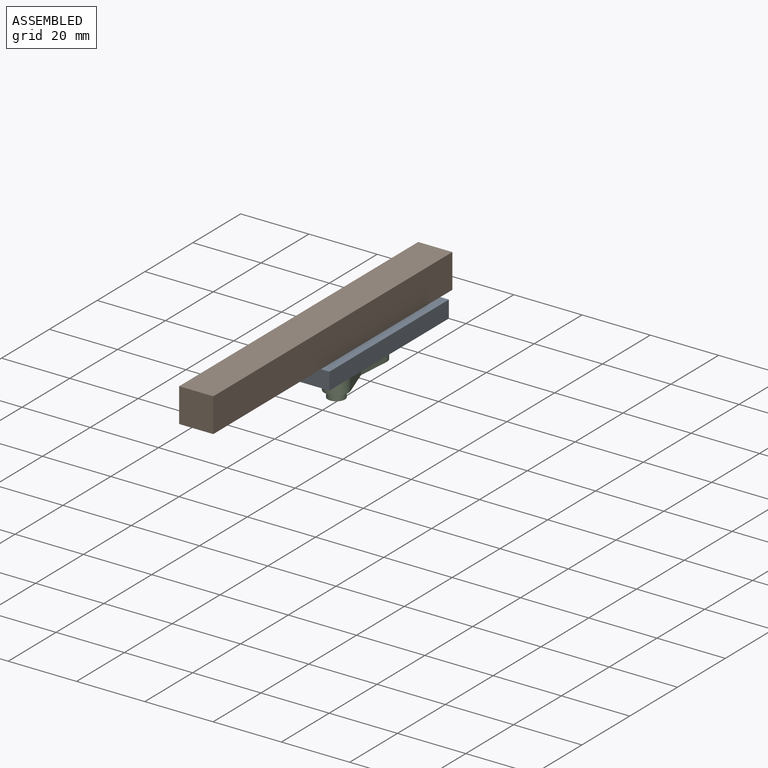
[diagram: assembled view]
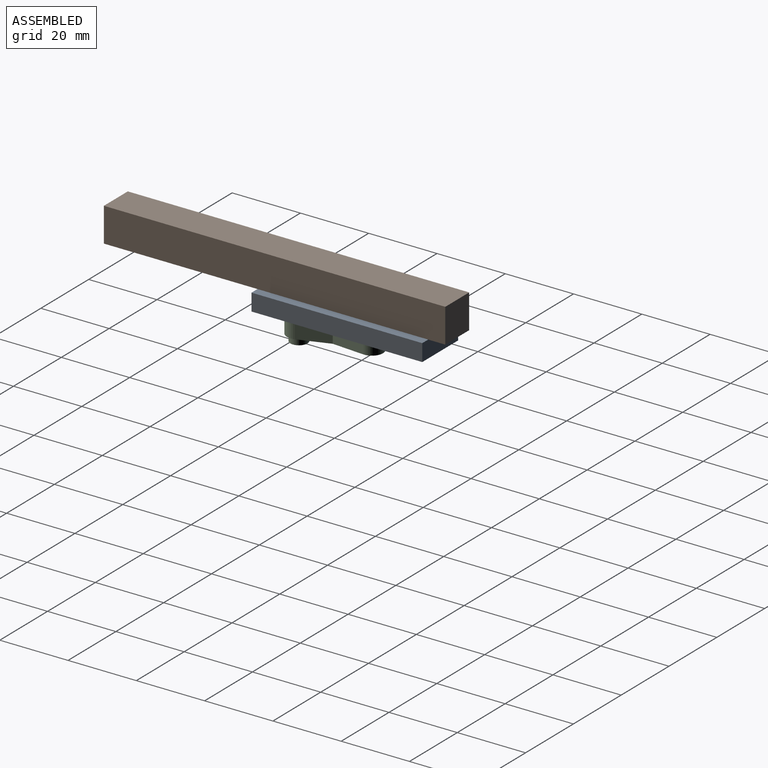
[diagram: assembled view, second angle]
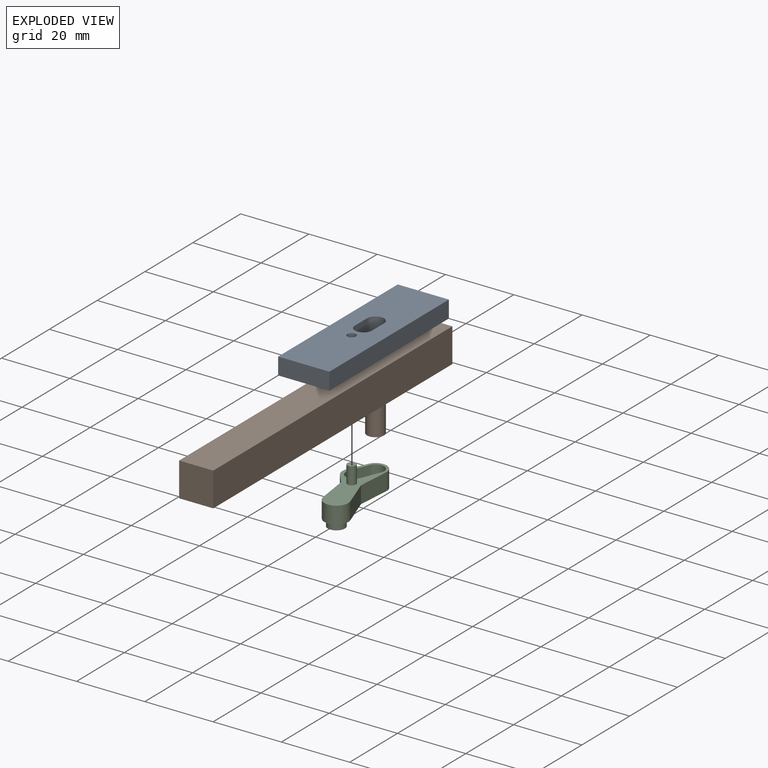
[diagram: exploded view]
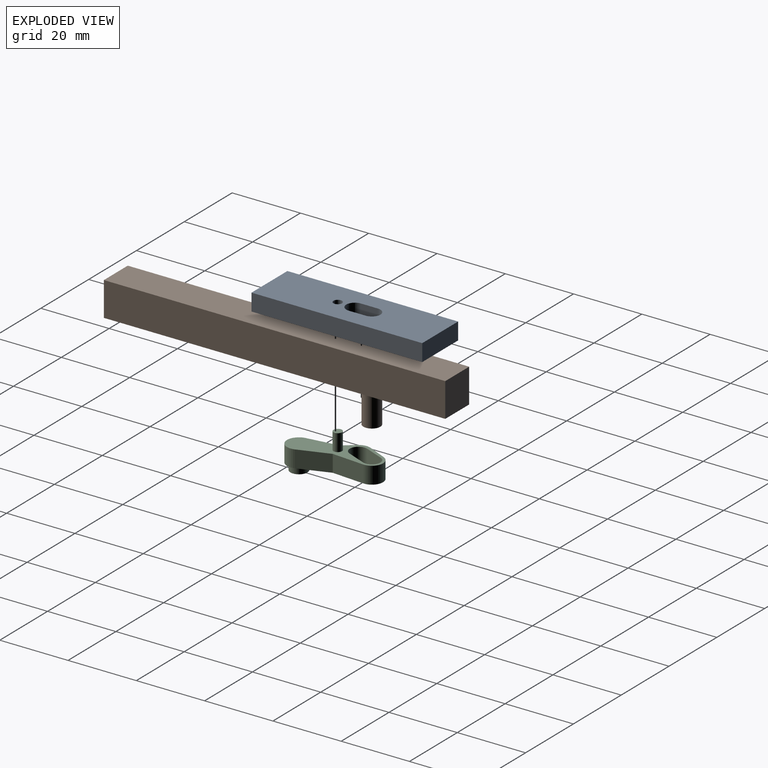
[diagram: exploded view, second angle]
ASSEMBLY  parts=3 mates=3
PART A: 11 faces, bbox 15x50x5 mm
  f0: plane 15x5mm, normal (0,1,0), area 75mm2, adj f1,f3,f4,f5
  f1: plane 50x5mm, normal (-1,0,0), area 250mm2, adj f0,f2,f4,f5
  f2: plane 15x5mm, normal (0,-1,0), area 75mm2, adj f1,f3,f4,f5
  f3: plane 50x5mm, normal (1,0,0), area 250mm2, adj f0,f2,f4,f5
  f4: plane 50x15mm, normal (0,0,1), area 700.5mm2, adj f0,f1,f2,f3,f6,f7,f8,f9
  f5: plane 50x15mm, normal (0,0,-1), area 700.5mm2, adj f0,f1,f2,f3,f6,f7,f8,f9
  f6: cylinder r=2.5mm len=5mm, axis (0,0,1), area 39.3mm2, adj f4,f5,f7,f9
  f7: plane 5x5mm, normal (-1,0,0), area 25mm2, adj f4,f5,f6,f8
  f8: cylinder r=2.5mm len=5mm, axis (0,0,1), area 39.3mm2, adj f4,f5,f7,f9
  f9: plane 5x5mm, normal (1,0,0), area 25mm2, adj f4,f5,f6,f8
  f10: cylinder r=1.25mm len=5mm, axis (0,0,1), area 39.3mm2, adj f4,f5
PART B: 8 faces, bbox 10x100x20 mm
  f0: plane 100x10mm, normal (0,0,1), area 1000mm2, adj f1,f3,f4,f5
  f1: plane 100x10mm, normal (-1,0,0), area 1000mm2, adj f0,f2,f4,f5
  f2: plane 100x10mm, normal (0,0,-1), area 980.4mm2, adj f1,f3,f4,f5,f6
  f3: plane 100x10mm, normal (1,0,0), area 1000mm2, adj f0,f2,f4,f5
  f4: plane 10x10mm, normal (0,-1,0), area 100mm2, adj f0,f1,f2,f3
  f5: plane 10x10mm, normal (0,1,0), area 100mm2, adj f0,f1,f2,f3
  f6: cylinder r=2.5mm len=10mm, axis (0,0,1), area 157.1mm2, adj f2,f7
  f7: plane 5x5mm, normal (0,0,-1), area 19.6mm2, adj f6
PART C: 18 faces, bbox 17.1x23.8x12 mm
  f0: cylinder r=3.5mm len=5mm, axis (0,0,-1), area 19.3mm2, adj f1,f10,f12,f13
  f1: plane 6x5mm, normal (1,0,0), area 30mm2, adj f0,f2,f12,f13
  f2: cylinder r=3.28mm len=6.36mm, axis (0,0,-1), area 45.8mm2, adj f1,f3,f12,f13
  f3: plane 8.87x5mm, normal (-0.94,0.34,0), area 47.2mm2, adj f2,f4,f12,f13
  f4: plane 6.81x6.52mm, normal (-0.72,0.69,0), area 47.1mm2, adj f3,f5,f12,f13
  f5: cylinder r=3.5mm len=6.46mm, axis (0,0,-1), area 58.5mm2, adj f4,f6,f12,f13
  f6: plane 7.83x5mm, normal (0.85,-0.53,0), area 46.3mm2, adj f5,f10,f12,f13
  f7: cylinder r=2.5mm len=5mm, axis (0,0,-1), area 39.3mm2, adj f8,f11,f12,f13
  f8: plane 6x5mm, normal (1,-0.04,0), area 30mm2, adj f7,f9,f12,f13
  f9: cylinder r=2.5mm len=5mm, axis (0,0,-1), area 39.3mm2, adj f8,f11,f12,f13
  f10: plane 5x3.75mm, normal (0.45,-0.89,0), area 21mm2, adj f0,f6,f12,f13
  f11: plane 6x5mm, normal (-1,0.04,0), area 30mm2, adj f7,f9,f12,f13
  f12: plane 23.76x17.08mm, normal (0,0,1), area 104.8mm2, adj f0,f1,f2,f3,f4,f5,f6,f7
  f13: plane 23.76x17.08mm, normal (0,0,-1), area 119.6mm2, adj f0,f1,f2,f3,f4,f5,f6,f7
  f14: cylinder r=2.5mm len=5mm, axis (0,0,-1), area 31.4mm2, adj f12,f15
  f15: plane 5x5mm, normal (0,0,1), area 19.6mm2, adj f14
  f16: plane 2.5x2.5mm, normal (0,0,-1), area 4.9mm2, adj f17
  f17: cylinder r=1.25mm len=5mm, axis (0,0,-1), area 39.3mm2, adj f13,f16
PLACE A t=(0.04,0.01,-2.55)mm fixed
PLACE B t=(0.04,30.01,7.45)mm
PLACE C rot(axis=(-0.21,-0.98,0),180deg) t=(0.04,-4.99,-2.55)mm
MATE planar B.f6 <-> A.f8  axis (0,0,-1) through (0.04,5.01,2.45)mm
MATE revolute C.f17 <-> A.f10  axis (0,0,1) through (0.04,-4.99,2.45)mm
MATE pin_slot B.f6 <-> C.f2  axis (0,0,-1) through (0.04,5.01,-7.55)mm
